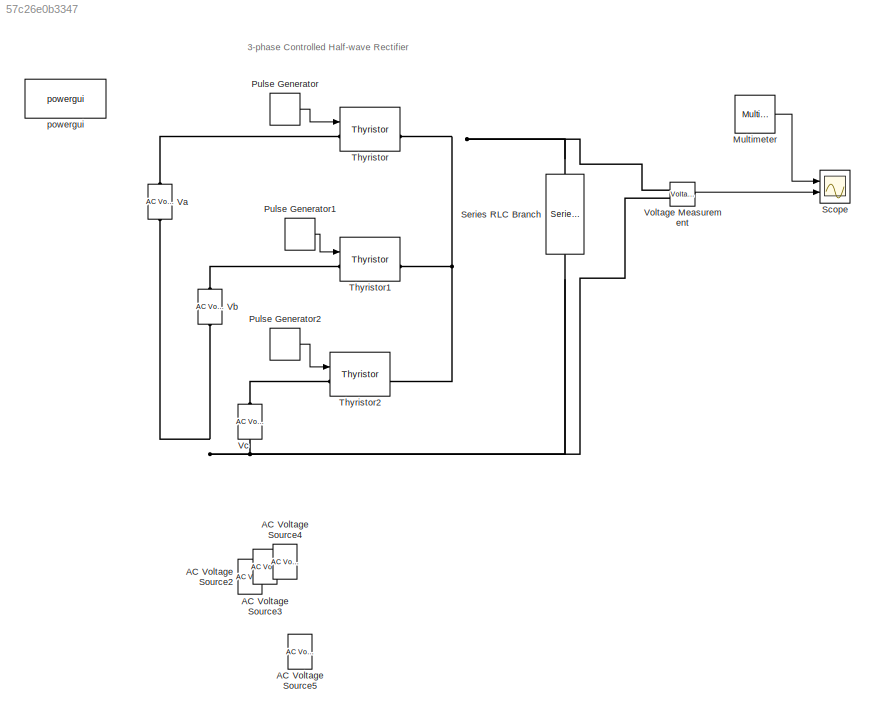
MODEL slx_57c26e0b3347
KIND model
CONFIG AbsTol = auto
CONFIG EnableMultiTasking = off
CONFIG FixedStep = auto
CONFIG MaxStep = 1e-4
CONFIG MinStep = auto
CONFIG RelTol = 1e-3
CONFIG SampleTimeConstraint = Unconstrained
CONFIG SolverName = VariableStepAuto
CONFIG StartTime = 0.0
CONFIG StopTime = 0.1
BLOCK [Reference] AC Voltage Source2  REF=spsACVoltageSourceLib/AC Voltage Source
  Ports = [0, 0, 0, 0, 0, 1, 1]
  SourceBlock = spsACVoltageSourceLib/AC Voltage Source
  SourceProductBaseCode = PS
  SourceType = AC Voltage Source
BLOCK [Reference] AC Voltage Source3  REF=spsACVoltageSourceLib/AC Voltage Source
  Ports = [0, 0, 0, 0, 0, 1, 1]
  SourceBlock = spsACVoltageSourceLib/AC Voltage Source
  SourceProductBaseCode = PS
  SourceType = AC Voltage Source
BLOCK [Reference] AC Voltage Source4  REF=spsACVoltageSourceLib/AC Voltage Source
  Ports = [0, 0, 0, 0, 0, 1, 1]
  SourceBlock = spsACVoltageSourceLib/AC Voltage Source
  SourceProductBaseCode = PS
  SourceType = AC Voltage Source
BLOCK [Reference] AC Voltage Source5  REF=spsACVoltageSourceLib/AC Voltage Source
  Ports = [0, 0, 0, 0, 0, 1, 1]
  SourceBlock = spsACVoltageSourceLib/AC Voltage Source
  SourceProductBaseCode = PS
  SourceType = AC Voltage Source
BLOCK [Reference] Multimeter  REF=spsMultimeterLib/Multimeter
  Ports = [0, 1]
  SourceBlock = spsMultimeterLib/Multimeter
  SourceProductBaseCode = PS
  SourceType = MultimeterPSB
BLOCK [DiscretePulseGenerator] Pulse Generator
  Period = 1/50
  PhaseDelay = (90*0.02)/360
  Ports = [0, 1]
  PulseType = Time based
  PulseWidth = 5
BLOCK [DiscretePulseGenerator] Pulse Generator1
  Period = 1/50
  PhaseDelay = (210*0.02)/360
  Ports = [0, 1]
  PulseType = Time based
  PulseWidth = 5
BLOCK [DiscretePulseGenerator] Pulse Generator2
  Period = 1/50
  PhaseDelay = (330*0.02)/360
  Ports = [0, 1]
  PulseType = Time based
  PulseWidth = 5
BLOCK [Scope] Scope
  Floating = off
  NumInputPorts = 2
  Ports = [2]
  ScopeSpecificationString = Simulink.scopes.TimeScopeBlockCfg('CurrentConfiguration', extmgr.ConfigurationSet(extmgr.Configuration('Core','General UI',true),extmgr.Configuration('Core','Source UI',true),extmgr.Configuration('Sources','WiredSimulink',true),extmgr.Configuration('Visuals','Time Domain',true,'SerializedDisplays',{struct('MinYLimReal','-125.00000','MaxYLimReal','125.00000','YLabelReal','','MinYLimMag',' 0.00000',...<+2095ch>
BLOCK [Reference] Series RLC Branch  REF=spsSeriesRLCBranchLib/Series RLC Branch
  NameLocation = left
  Ports = [0, 0, 0, 0, 0, 1, 1]
  SourceBlock = spsSeriesRLCBranchLib/Series RLC Branch
  SourceProductBaseCode = PS
  SourceType = Series RLC Branch
BLOCK [Reference] Thyristor  REF=spsThyristorLib/Thyristor
  Ports = [1, 1, 0, 0, 0, 1, 1]
  SourceBlock = spsThyristorLib/Thyristor
  SourceProductBaseCode = PS
  SourceType = Thyristor
BLOCK [Reference] Thyristor1  REF=spsThyristorLib/Thyristor
  Ports = [1, 1, 0, 0, 0, 1, 1]
  SourceBlock = spsThyristorLib/Thyristor
  SourceProductBaseCode = PS
  SourceType = Thyristor
BLOCK [Reference] Thyristor2  REF=spsThyristorLib/Thyristor
  Ports = [1, 1, 0, 0, 0, 1, 1]
  SourceBlock = spsThyristorLib/Thyristor
  SourceProductBaseCode = PS
  SourceType = Thyristor
BLOCK [Reference] Va  REF=spsACVoltageSourceLib/AC Voltage Source
  Ports = [0, 0, 0, 0, 0, 1, 1]
  SourceBlock = spsACVoltageSourceLib/AC Voltage Source
  SourceProductBaseCode = PS
  SourceType = AC Voltage Source
BLOCK [Reference] Vb  REF=spsACVoltageSourceLib/AC Voltage Source
  Ports = [0, 0, 0, 0, 0, 1, 1]
  SourceBlock = spsACVoltageSourceLib/AC Voltage Source
  SourceProductBaseCode = PS
  SourceType = AC Voltage Source
BLOCK [Reference] Vc  REF=spsACVoltageSourceLib/AC Voltage Source
  Ports = [0, 0, 0, 0, 0, 1, 1]
  SourceBlock = spsACVoltageSourceLib/AC Voltage Source
  SourceProductBaseCode = PS
  SourceType = AC Voltage Source
BLOCK [Reference] Voltage Measurement  REF=spsVoltageMeasurementLib/Voltage Measurement
  Ports = [0, 1, 0, 0, 0, 2]
  SourceBlock = spsVoltageMeasurementLib/Voltage Measurement
  SourceProductBaseCode = PS
  SourceType = Voltage Measurement
  UserDataPersistent = on
BLOCK [Reference] powergui  REF=spspowerguiLib/powergui
  Ports = []
  Priority = 1
  SourceBlock = spspowerguiLib/powergui
  SourceProductBaseCode = PS
  SourceType = PSB option menu block
ANNOTATION (root): 3-phase Controlled Half-wave Rectifier
LINE Multimeter:1 -> Scope:1
LINE Pulse Generator1:1 -> Thyristor1:1
LINE Pulse Generator2:1 -> Thyristor2:1
LINE Pulse Generator:1 -> Thyristor:1
LINE Voltage Measurement:1 -> Scope:2
PNET net1: Series RLC Branch:LConn1 -- Thyristor1:RConn1 -- Thyristor2:RConn1 -- Thyristor:RConn1 -- Voltage Measurement:LConn1
PNET net2: Series RLC Branch:RConn1 -- Va:LConn1 -- Vb:LConn1 -- Vc:LConn1 -- Voltage Measurement:LConn2
PLINE Thyristor1:LConn1 -- Vb:RConn1
PLINE Thyristor2:LConn1 -- Vc:RConn1
PLINE Thyristor:LConn1 -- Va:RConn1
note: PNET lines group multi-terminal physical nets as a canonical sorted terminal list (undirected conserving connections); 2-terminal nets keep the pairwise PLINE form
